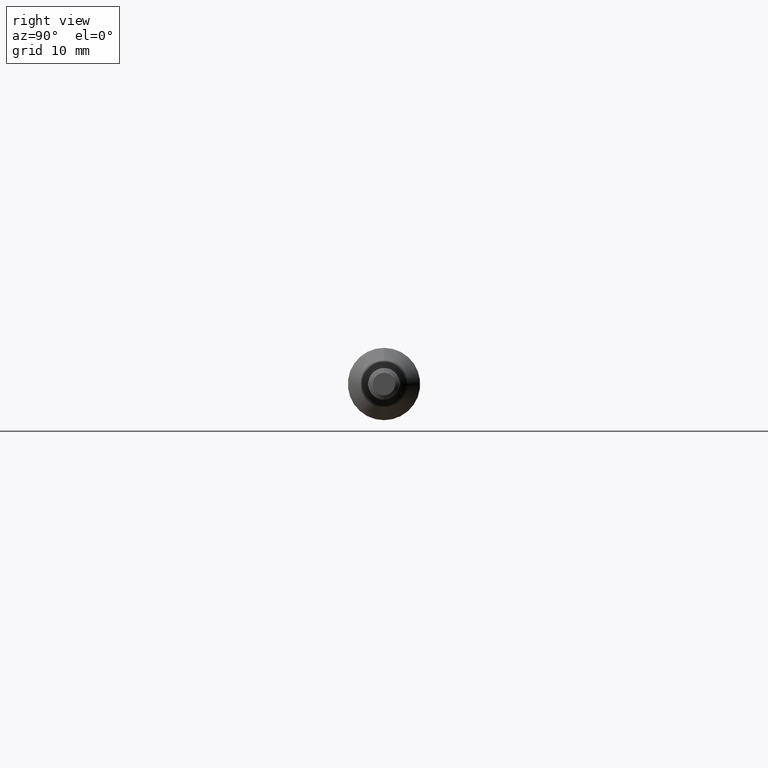
[diagram: clean part render]
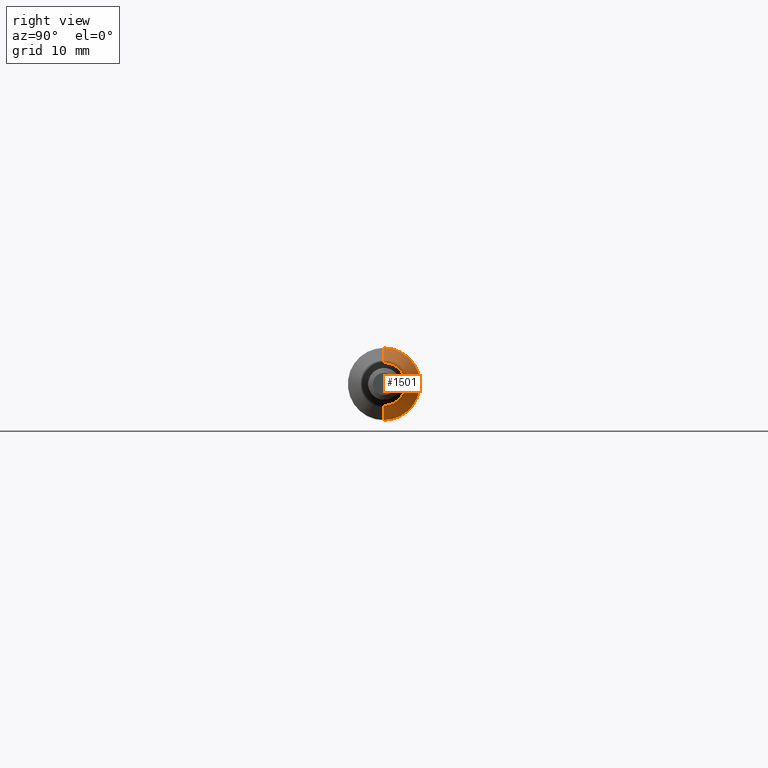
[diagram: same view with one face highlighted and labeled with its STEP entity id]
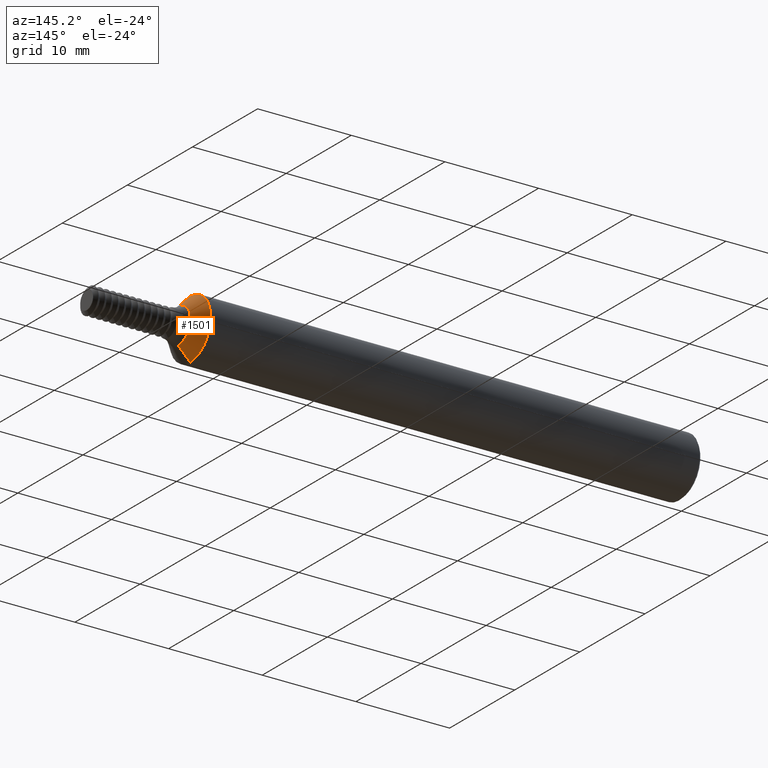
[diagram: same view with one face highlighted and labeled with its STEP entity id]
A machine part, right view. The second image highlights one B-rep face of the part: STEP entity #1501.
A second angle (auxiliary view) of the same face is appended — the face is thin or edge-on in the first view.
In plain terms, the highlighted conical surface has half-angle 45 deg.
Its self-contained STEP definition (entity closure, byte-faithful):
#118 = CARTESIAN_POINT ( 'NONE',  ( 2.064999999999999947, 1.528971528735470422E-17, -0.1248500000000000026 ) ) ;
#178 = LINE ( 'NONE', #1462, #2017 ) ;
#221 = CIRCLE ( 'NONE', #1396, 0.1248500000000000026 ) ;
#250 = DIRECTION ( 'NONE',  ( 0.000000000000000000, 0.000000000000000000, 1.000000000000000000 ) ) ;
#259 = EDGE_CURVE ( 'NONE', #1977, #433, #178, .T. ) ;
#432 = CARTESIAN_POINT ( 'NONE',  ( 2.115776406871192616, 9.071398872653704742E-18, -0.07407359312880715252 ) ) ;
#433 = VERTEX_POINT ( 'NONE', #2181 ) ;
#481 = CIRCLE ( 'NONE', #844, 0.07407359312880715252 ) ;
#500 = ORIENTED_EDGE ( 'NONE', *, *, #1190, .F. ) ;
#660 = VERTEX_POINT ( 'NONE', #118 ) ;
#675 = AXIS2_PLACEMENT_3D ( 'NONE', #1046, #1463, #1646 ) ;
#686 = DIRECTION ( 'NONE',  ( -1.000000000000000000, -0.000000000000000000, -0.000000000000000000 ) ) ;
#719 = CARTESIAN_POINT ( 'NONE',  ( 2.115776406871192616, 0.000000000000000000, 0.000000000000000000 ) ) ;
#795 = DIRECTION ( 'NONE',  ( -0.7071067811865462405, 0.000000000000000000, 0.7071067811865487940 ) ) ;
#809 = CARTESIAN_POINT ( 'NONE',  ( 2.115776406871192616, 0.000000000000000000, 0.07407359312880715252 ) ) ;
#844 = AXIS2_PLACEMENT_3D ( 'NONE', #719, #1994, #949 ) ;
#930 = EDGE_CURVE ( 'NONE', #1977, #1097, #481, .T. ) ;
#949 = DIRECTION ( 'NONE',  ( 0.000000000000000000, 0.000000000000000000, 1.000000000000000000 ) ) ;
#1046 = CARTESIAN_POINT ( 'NONE',  ( 2.115776406871192616, 0.000000000000000000, 0.000000000000000000 ) ) ;
#1093 = ORIENTED_EDGE ( 'NONE', *, *, #259, .F. ) ;
#1097 = VERTEX_POINT ( 'NONE', #2530 ) ;
#1105 = DIRECTION ( 'NONE',  ( -0.7071067811865462405, 8.659560562354948882E-17, -0.7071067811865487940 ) ) ;
#1190 = EDGE_CURVE ( 'NONE', #433, #660, #221, .T. ) ;
#1241 = EDGE_LOOP ( 'NONE', ( #2672, #2395, #500, #1093 ) ) ;
#1269 = CONICAL_SURFACE ( 'NONE', #675, 0.07407359312880715252, 0.7853981633974501664 ) ;
#1396 = AXIS2_PLACEMENT_3D ( 'NONE', #2211, #686, #250 ) ;
#1462 = CARTESIAN_POINT ( 'NONE',  ( 2.115776406871192616, 0.000000000000000000, 0.07407359312880715252 ) ) ;
#1463 = DIRECTION ( 'NONE',  ( -1.000000000000000000, -0.000000000000000000, -0.000000000000000000 ) ) ;
#1501 = ADVANCED_FACE ( 'NONE', ( #1889 ), #1269, .T. ) ;
#1524 = LINE ( 'NONE', #432, #2398 ) ;
#1646 = DIRECTION ( 'NONE',  ( 0.000000000000000000, 0.000000000000000000, 1.000000000000000000 ) ) ;
#1889 = FACE_OUTER_BOUND ( 'NONE', #1241, .T. ) ;
#1977 = VERTEX_POINT ( 'NONE', #809 ) ;
#1994 = DIRECTION ( 'NONE',  ( -1.000000000000000000, -0.000000000000000000, -0.000000000000000000 ) ) ;
#2017 = VECTOR ( 'NONE', #795, 39.37007874015748143 ) ;
#2181 = CARTESIAN_POINT ( 'NONE',  ( 2.064999999999999947, 0.000000000000000000, 0.1248500000000000026 ) ) ;
#2211 = CARTESIAN_POINT ( 'NONE',  ( 2.064999999999999947, 0.000000000000000000, 0.000000000000000000 ) ) ;
#2395 = ORIENTED_EDGE ( 'NONE', *, *, #2433, .T. ) ;
#2398 = VECTOR ( 'NONE', #1105, 39.37007874015748143 ) ;
#2433 = EDGE_CURVE ( 'NONE', #1097, #660, #1524, .T. ) ;
#2530 = CARTESIAN_POINT ( 'NONE',  ( 2.115776406871192616, 1.218055708000420448E-17, -0.07407359312880715252 ) ) ;
#2672 = ORIENTED_EDGE ( 'NONE', *, *, #930, .T. ) ;